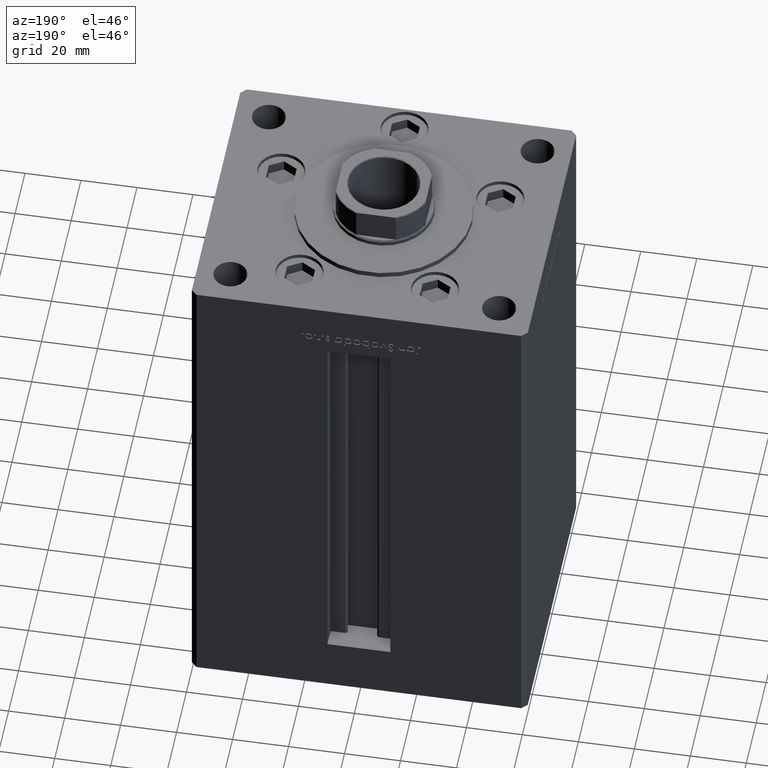
[diagram: clean part render]
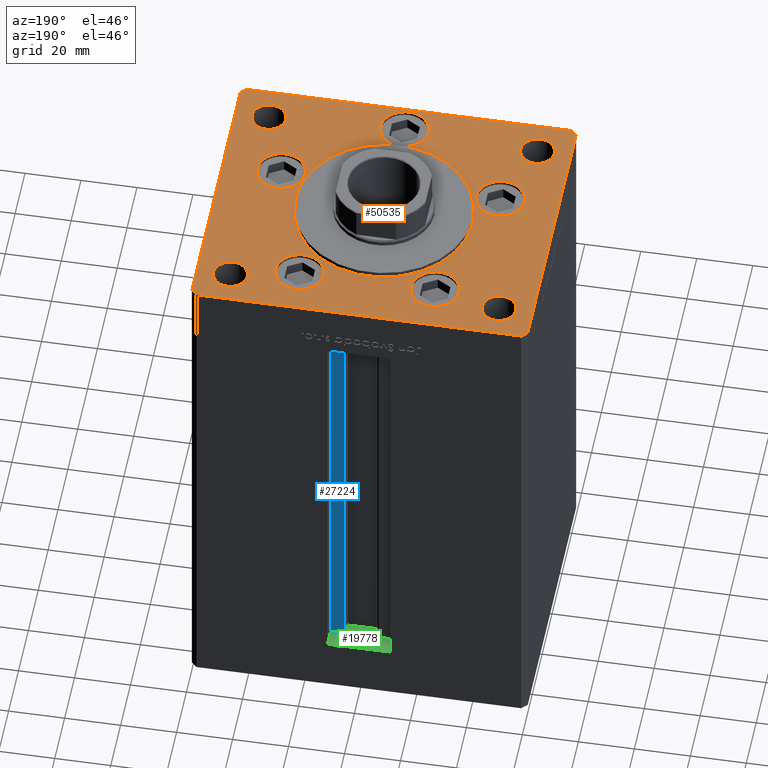
[diagram: same view with three faces highlighted in distinct colors, each labeled with its STEP entity id]
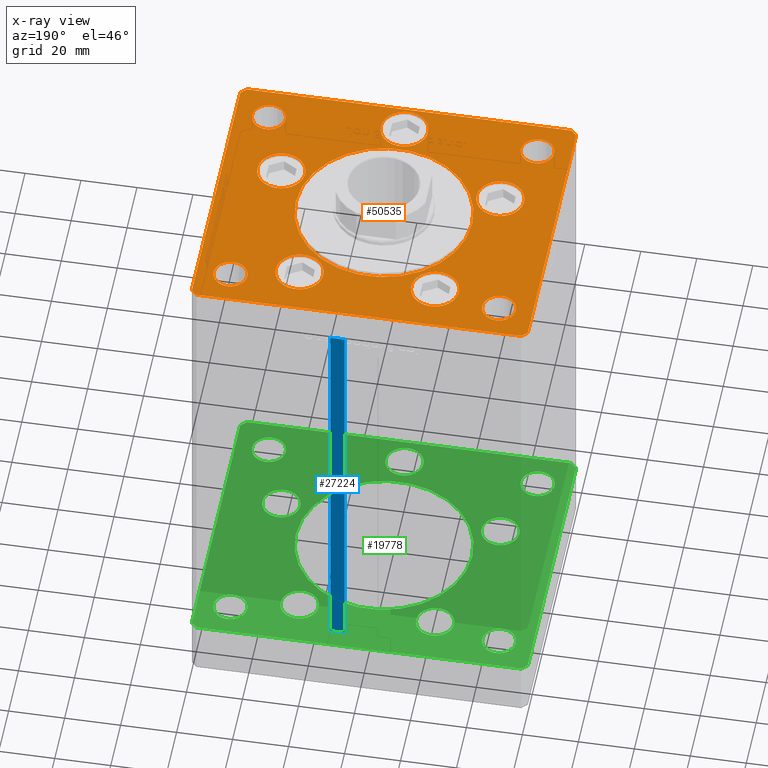
[diagram: x-ray of the same camera — body ghosted, the three highlighted faces saturated]
A machine part, auxiliary view with three faces highlighted in distinct colors.
The next image is the same camera in x-ray (body ghosted, the three faces saturated) — at least one of them is partly hidden behind the body in this view.
Their STEP definitions:

[orange] entity #50535 — the highlighted planar face has unit normal (0, 0, 1).
#185 = CARTESIAN_POINT ( 'NONE',  ( 31.50000000000000000, -3.081256486593065689E-15, 0.000000000000000000 ) ) ;
#262 = FACE_BOUND ( 'NONE', #1517, .T. ) ;
#434 = CIRCLE ( 'NONE', #8855, 31.50000000000000000 ) ;
#737 = CIRCLE ( 'NONE', #7461, 6.000000000000005329 ) ;
#880 = CARTESIAN_POINT ( 'NONE',  ( 48.00000000000000000, -39.00000000000001421, 0.000000000000000000 ) ) ;
#1144 = DIRECTION ( 'NONE',  ( 1.000000000000000000, 0.000000000000000000, 0.000000000000000000 ) ) ;
#1154 = CARTESIAN_POINT ( 'NONE',  ( 48.00000000000000000, 39.00000000000000000, 0.000000000000000000 ) ) ;
#1517 = EDGE_LOOP ( 'NONE', ( #33953, #35076 ) ) ;
#1633 = ORIENTED_EDGE ( 'NONE', *, *, #51772, .T. ) ;
#2151 = ORIENTED_EDGE ( 'NONE', *, *, #50298, .F. ) ;
#2463 = CARTESIAN_POINT ( 'NONE',  ( 0.000000000000000000, -6.938893903907228378E-15, 0.000000000000000000 ) ) ;
#2845 = CIRCLE ( 'NONE', #50816, 6.000000000000005329 ) ;
#2955 = CARTESIAN_POINT ( 'NONE',  ( 47.62657522565563539, -13.83333333333332860, 0.000000000000000000 ) ) ;
#3052 = VECTOR ( 'NONE', #6589, 1000.000000000000000 ) ;
#3515 = LINE ( 'NONE', #4296, #48664 ) ;
#3638 = CARTESIAN_POINT ( 'NONE',  ( 60.00000000000001421, 49.00000000000002842, 0.000000000000000000 ) ) ;
#3797 = CARTESIAN_POINT ( 'NONE',  ( -60.00000000000000000, 49.00000000000000000, 0.000000000000000000 ) ) ;
#3827 = CARTESIAN_POINT ( 'NONE',  ( 54.00000000000000711, -39.00000000000001421, 0.000000000000000000 ) ) ;
#3857 = CARTESIAN_POINT ( 'NONE',  ( -58.00000000000000711, -51.00000000000002842, 0.000000000000000000 ) ) ;
#3951 = DIRECTION ( 'NONE',  ( -0.000000000000000000, 0.000000000000000000, 1.000000000000000000 ) ) ;
#4238 = ORIENTED_EDGE ( 'NONE', *, *, #43048, .F. ) ;
#4296 = CARTESIAN_POINT ( 'NONE',  ( 58.00000000000000000, 51.00000000000000711, 0.000000000000000000 ) ) ;
#4360 = EDGE_CURVE ( 'NONE', #10547, #4986, #25773, .T. ) ;
#4701 = CARTESIAN_POINT ( 'NONE',  ( 39.12657522565563539, -13.83333333333332860, 0.000000000000000000 ) ) ;
#4986 = VERTEX_POINT ( 'NONE', #37569 ) ;
#5121 = VERTEX_POINT ( 'NONE', #13509 ) ;
#5194 = VERTEX_POINT ( 'NONE', #26675 ) ;
#5265 = CIRCLE ( 'NONE', #26284, 6.000000000000005329 ) ;
#5558 = AXIS2_PLACEMENT_3D ( 'NONE', #43941, #19971, #28398 ) ;
#5627 = DIRECTION ( 'NONE',  ( 0.000000000000000000, 0.000000000000000000, 1.000000000000000000 ) ) ;
#5755 = AXIS2_PLACEMENT_3D ( 'NONE', #15783, #3951, #16300 ) ;
#5776 = ORIENTED_EDGE ( 'NONE', *, *, #46290, .F. ) ;
#6110 = CARTESIAN_POINT ( 'NONE',  ( 58.00000000000001421, -50.99999999999992184, 0.000000000000000000 ) ) ;
#6589 = DIRECTION ( 'NONE',  ( 0.000000000000000000, 1.000000000000000000, 0.000000000000000000 ) ) ;
#6631 = CARTESIAN_POINT ( 'NONE',  ( -48.00000000000000000, 39.00000000000000711, 0.000000000000000000 ) ) ;
#7089 = CARTESIAN_POINT ( 'NONE',  ( -41.99999999999999289, -39.00000000000001421, 0.000000000000000000 ) ) ;
#7126 = CIRCLE ( 'NONE', #44128, 8.499999999999992895 ) ;
#7217 = EDGE_CURVE ( 'NONE', #16420, #5121, #15681, .T. ) ;
#7232 = CIRCLE ( 'NONE', #36691, 31.50000000000000000 ) ;
#7312 = EDGE_LOOP ( 'NONE', ( #47603, #5776 ) ) ;
#7461 = AXIS2_PLACEMENT_3D ( 'NONE', #28326, #44400, #36495 ) ;
#7678 = DIRECTION ( 'NONE',  ( 1.000000000000000000, 0.000000000000000000, 0.000000000000000000 ) ) ;
#7922 = EDGE_CURVE ( 'NONE', #19892, #48755, #19090, .T. ) ;
#8158 = EDGE_CURVE ( 'NONE', #40352, #13377, #42644, .T. ) ;
#8820 = AXIS2_PLACEMENT_3D ( 'NONE', #16201, #23869, #32555 ) ;
#8855 = AXIS2_PLACEMENT_3D ( 'NONE', #2463, #22723, #43009 ) ;
#9013 = CARTESIAN_POINT ( 'NONE',  ( 15.69288941894913769, 33.71874999999998579, 0.000000000000000000 ) ) ;
#9322 = CARTESIAN_POINT ( 'NONE',  ( -41.99999999999999289, 39.00000000000000711, 0.000000000000000000 ) ) ;
#9624 = EDGE_LOOP ( 'NONE', ( #2151, #43667 ) ) ;
#9683 = ORIENTED_EDGE ( 'NONE', *, *, #44700, .F. ) ;
#9729 = CARTESIAN_POINT ( 'NONE',  ( 60.00000000000001421, 49.00000000000002842, 0.000000000000000000 ) ) ;
#10237 = EDGE_CURVE ( 'NONE', #30057, #36715, #34348, .T. ) ;
#10272 = CARTESIAN_POINT ( 'NONE',  ( 54.00000000000000711, 39.00000000000000000, 0.000000000000000000 ) ) ;
#10309 = CARTESIAN_POINT ( 'NONE',  ( 30.62657522565563184, -13.83333333333332682, 0.000000000000000000 ) ) ;
#10520 = CARTESIAN_POINT ( 'NONE',  ( 58.00000000000000000, 51.00000000000000711, 0.000000000000000000 ) ) ;
#10547 = VERTEX_POINT ( 'NONE', #3827 ) ;
#10672 = AXIS2_PLACEMENT_3D ( 'NONE', #47862, #51836, #27579 ) ;
#10709 = DIRECTION ( 'NONE',  ( 0.000000000000000000, 0.000000000000000000, 1.000000000000000000 ) ) ;
#10840 = VERTEX_POINT ( 'NONE', #40635 ) ;
#11454 = EDGE_CURVE ( 'NONE', #29745, #27309, #3515, .T. ) ;
#11493 = CARTESIAN_POINT ( 'NONE',  ( -58.00000000000000711, -51.00000000000002842, 0.000000000000000000 ) ) ;
#12627 = PLANE ( 'NONE',  #5755 ) ;
#12785 = CARTESIAN_POINT ( 'NONE',  ( 8.500000000000000000, -41.50000000000000000, 0.000000000000000000 ) ) ;
#12974 = DIRECTION ( 'NONE',  ( -1.000000000000000000, 0.000000000000000000, 0.000000000000000000 ) ) ;
#13345 = ORIENTED_EDGE ( 'NONE', *, *, #32175, .T. ) ;
#13377 = VERTEX_POINT ( 'NONE', #9013 ) ;
#13404 = ORIENTED_EDGE ( 'NONE', *, *, #48327, .F. ) ;
#13509 = CARTESIAN_POINT ( 'NONE',  ( 41.99999999999999289, 39.00000000000000000, 0.000000000000000000 ) ) ;
#13801 = CARTESIAN_POINT ( 'NONE',  ( -39.12657522565563539, -13.83333333333332860, 0.000000000000000000 ) ) ;
#14270 = DIRECTION ( 'NONE',  ( -0.000000000000000000, -0.000000000000000000, -1.000000000000000000 ) ) ;
#14670 = CIRCLE ( 'NONE', #24766, 8.500000000000000000 ) ;
#14858 = VERTEX_POINT ( 'NONE', #3638 ) ;
#14899 = CARTESIAN_POINT ( 'NONE',  ( -30.62657522565563539, -13.83333333333332860, 0.000000000000000000 ) ) ;
#14961 = CIRCLE ( 'NONE', #41046, 8.500000000000000000 ) ;
#15010 = VERTEX_POINT ( 'NONE', #50522 ) ;
#15045 = CARTESIAN_POINT ( 'NONE',  ( 48.00000000000000000, -39.00000000000001421, 0.000000000000000000 ) ) ;
#15582 = CARTESIAN_POINT ( 'NONE',  ( 48.00000000000000000, 39.00000000000000000, 0.000000000000000000 ) ) ;
#15653 = DIRECTION ( 'NONE',  ( 0.000000000000000000, 0.000000000000000000, 1.000000000000000000 ) ) ;
#15681 = CIRCLE ( 'NONE', #33398, 6.000000000000005329 ) ;
#15758 = FACE_BOUND ( 'NONE', #7312, .T. ) ;
#15783 = CARTESIAN_POINT ( 'NONE',  ( 0.000000000000000000, 0.000000000000000000, 0.000000000000000000 ) ) ;
#15978 = CARTESIAN_POINT ( 'NONE',  ( -8.500000000000000000, -41.50000000000000000, 0.000000000000000000 ) ) ;
#16201 = CARTESIAN_POINT ( 'NONE',  ( -48.00000000000000000, -39.00000000000001421, 0.000000000000000000 ) ) ;
#16300 = DIRECTION ( 'NONE',  ( 1.000000000000000000, 0.000000000000000000, 0.000000000000000000 ) ) ;
#16373 = CARTESIAN_POINT ( 'NONE',  ( 39.12657522565563539, -13.83333333333332860, 0.000000000000000000 ) ) ;
#16420 = VERTEX_POINT ( 'NONE', #10272 ) ;
#16795 = DIRECTION ( 'NONE',  ( 1.000000000000000000, 0.000000000000000000, 0.000000000000000000 ) ) ;
#16930 = CARTESIAN_POINT ( 'NONE',  ( -54.00000000000000711, 39.00000000000000711, 0.000000000000000000 ) ) ;
#17629 = CARTESIAN_POINT ( 'NONE',  ( -15.69288941894913414, 33.71874999999998579, 0.000000000000000000 ) ) ;
#17966 = EDGE_CURVE ( 'NONE', #39639, #14858, #23675, .T. ) ;
#18190 = DIRECTION ( 'NONE',  ( 1.000000000000000000, 0.000000000000000000, 0.000000000000000000 ) ) ;
#19004 = DIRECTION ( 'NONE',  ( -1.000000000000000000, 0.000000000000000000, 0.000000000000000000 ) ) ;
#19084 = EDGE_LOOP ( 'NONE', ( #38382, #26314 ) ) ;
#19090 = CIRCLE ( 'NONE', #29179, 8.500000000000000000 ) ;
#19369 = EDGE_LOOP ( 'NONE', ( #37688, #13404 ) ) ;
#19549 = ORIENTED_EDGE ( 'NONE', *, *, #41529, .F. ) ;
#19718 = VECTOR ( 'NONE', #21081, 1000.000000000000114 ) ;
#19892 = VERTEX_POINT ( 'NONE', #17629 ) ;
#19971 = DIRECTION ( 'NONE',  ( 0.000000000000000000, 0.000000000000000000, 1.000000000000000000 ) ) ;
#20403 = EDGE_CURVE ( 'NONE', #10840, #39639, #27157, .T. ) ;
#20439 = EDGE_CURVE ( 'NONE', #23991, #41467, #42154, .T. ) ;
#20629 = CIRCLE ( 'NONE', #8820, 6.000000000000005329 ) ;
#20708 = ORIENTED_EDGE ( 'NONE', *, *, #11454, .T. ) ;
#20760 = DIRECTION ( 'NONE',  ( 0.000000000000000000, 0.000000000000000000, 1.000000000000000000 ) ) ;
#20892 = DIRECTION ( 'NONE',  ( 0.000000000000000000, 0.000000000000000000, 1.000000000000000000 ) ) ;
#21081 = DIRECTION ( 'NONE',  ( 0.7071067811865474617, -0.7071067811865474617, 0.000000000000000000 ) ) ;
#21407 = VERTEX_POINT ( 'NONE', #2955 ) ;
#21585 = VECTOR ( 'NONE', #39427, 1000.000000000000000 ) ;
#21839 = LINE ( 'NONE', #9729, #33663 ) ;
#22413 = DIRECTION ( 'NONE',  ( 0.000000000000000000, 0.000000000000000000, 1.000000000000000000 ) ) ;
#22437 = DIRECTION ( 'NONE',  ( -0.000000000000000000, -0.000000000000000000, -1.000000000000000000 ) ) ;
#22615 = EDGE_CURVE ( 'NONE', #14858, #29745, #21839, .T. ) ;
#22723 = DIRECTION ( 'NONE',  ( 0.000000000000000000, 0.000000000000000000, 1.000000000000000000 ) ) ;
#22907 = CARTESIAN_POINT ( 'NONE',  ( -24.19288941894913592, 33.71874999999998579, 0.000000000000000000 ) ) ;
#23343 = CARTESIAN_POINT ( 'NONE',  ( -60.00000000000000000, 49.00000000000000000, 0.000000000000000000 ) ) ;
#23348 = ORIENTED_EDGE ( 'NONE', *, *, #20439, .T. ) ;
#23446 = FACE_BOUND ( 'NONE', #43613, .T. ) ;
#23521 = AXIS2_PLACEMENT_3D ( 'NONE', #6631, #22437, #31113 ) ;
#23576 = CARTESIAN_POINT ( 'NONE',  ( 0.000000000000000000, -41.50000000000000000, 0.000000000000000000 ) ) ;
#23675 = LINE ( 'NONE', #31847, #3052 ) ;
#23869 = DIRECTION ( 'NONE',  ( 0.000000000000000000, 0.000000000000000000, 1.000000000000000000 ) ) ;
#23991 = VERTEX_POINT ( 'NONE', #16930 ) ;
#24002 = CARTESIAN_POINT ( 'NONE',  ( 0.000000000000000000, -41.50000000000000000, 0.000000000000000000 ) ) ;
#24083 = AXIS2_PLACEMENT_3D ( 'NONE', #49356, #20892, #1144 ) ;
#24400 = LINE ( 'NONE', #3857, #34073 ) ;
#24541 = CARTESIAN_POINT ( 'NONE',  ( -24.19288941894913592, 33.71874999999998579, 0.000000000000000000 ) ) ;
#24766 = AXIS2_PLACEMENT_3D ( 'NONE', #4701, #20760, #16795 ) ;
#25000 = ORIENTED_EDGE ( 'NONE', *, *, #17966, .T. ) ;
#25757 = CIRCLE ( 'NONE', #5558, 8.500000000000000000 ) ;
#25773 = CIRCLE ( 'NONE', #45963, 6.000000000000005329 ) ;
#26238 = EDGE_LOOP ( 'NONE', ( #28160, #44499 ) ) ;
#26284 = AXIS2_PLACEMENT_3D ( 'NONE', #15582, #31668, #47746 ) ;
#26314 = ORIENTED_EDGE ( 'NONE', *, *, #34754, .F. ) ;
#26362 = ORIENTED_EDGE ( 'NONE', *, *, #22615, .T. ) ;
#26675 = CARTESIAN_POINT ( 'NONE',  ( -54.00000000000000711, -39.00000000000001421, 0.000000000000000000 ) ) ;
#26786 = DIRECTION ( 'NONE',  ( 1.000000000000000000, 0.000000000000000000, 0.000000000000000000 ) ) ;
#27157 = LINE ( 'NONE', #6110, #42042 ) ;
#27167 = CIRCLE ( 'NONE', #38987, 8.500000000000000000 ) ;
#27202 = CARTESIAN_POINT ( 'NONE',  ( -31.50000000000000000, -6.938893903907228378E-15, 0.000000000000000000 ) ) ;
#27309 = VERTEX_POINT ( 'NONE', #35759 ) ;
#27579 = DIRECTION ( 'NONE',  ( 1.000000000000000000, 0.000000000000000000, 0.000000000000000000 ) ) ;
#27645 = DIRECTION ( 'NONE',  ( 0.000000000000000000, 0.000000000000000000, 1.000000000000000000 ) ) ;
#27901 = DIRECTION ( 'NONE',  ( 1.000000000000000000, 0.000000000000000000, 0.000000000000000000 ) ) ;
#27988 = DIRECTION ( 'NONE',  ( 0.000000000000000000, 0.000000000000000000, 1.000000000000000000 ) ) ;
#28043 = EDGE_CURVE ( 'NONE', #5121, #16420, #5265, .T. ) ;
#28156 = FACE_BOUND ( 'NONE', #19084, .T. ) ;
#28160 = ORIENTED_EDGE ( 'NONE', *, *, #7217, .F. ) ;
#28184 = FACE_OUTER_BOUND ( 'NONE', #49896, .T. ) ;
#28326 = CARTESIAN_POINT ( 'NONE',  ( -48.00000000000000000, 39.00000000000000711, 0.000000000000000000 ) ) ;
#28398 = DIRECTION ( 'NONE',  ( 1.000000000000000000, 0.000000000000000000, 0.000000000000000000 ) ) ;
#28962 = ORIENTED_EDGE ( 'NONE', *, *, #35226, .T. ) ;
#28986 = ORIENTED_EDGE ( 'NONE', *, *, #4360, .T. ) ;
#29175 = DIRECTION ( 'NONE',  ( -0.7071067811865536790, -0.7071067811865414665, 0.000000000000000000 ) ) ;
#29179 = AXIS2_PLACEMENT_3D ( 'NONE', #22907, #27645, #27901 ) ;
#29313 = VECTOR ( 'NONE', #29175, 1000.000000000000000 ) ;
#29582 = DIRECTION ( 'NONE',  ( -0.000000000000000000, -0.000000000000000000, -1.000000000000000000 ) ) ;
#29745 = VERTEX_POINT ( 'NONE', #10520 ) ;
#30057 = VERTEX_POINT ( 'NONE', #14899 ) ;
#30240 = LINE ( 'NONE', #23343, #21585 ) ;
#30341 = DIRECTION ( 'NONE',  ( 0.7071067811865474617, 0.7071067811865474617, 0.000000000000000000 ) ) ;
#30367 = DIRECTION ( 'NONE',  ( 1.000000000000000000, 0.000000000000000000, 0.000000000000000000 ) ) ;
#30368 = DIRECTION ( 'NONE',  ( 1.000000000000000000, 0.000000000000000000, 0.000000000000000000 ) ) ;
#30609 = VERTEX_POINT ( 'NONE', #7089 ) ;
#30627 = CARTESIAN_POINT ( 'NONE',  ( 0.000000000000000000, -6.938893903907228378E-15, 0.000000000000000000 ) ) ;
#31113 = DIRECTION ( 'NONE',  ( -1.000000000000000000, 0.000000000000000000, 0.000000000000000000 ) ) ;
#31511 = EDGE_CURVE ( 'NONE', #43478, #46007, #27167, .T. ) ;
#31667 = AXIS2_PLACEMENT_3D ( 'NONE', #23576, #15653, #39399 ) ;
#31668 = DIRECTION ( 'NONE',  ( 0.000000000000000000, 0.000000000000000000, 1.000000000000000000 ) ) ;
#31847 = CARTESIAN_POINT ( 'NONE',  ( 60.00000000000001421, -48.99999999999992895, 0.000000000000000000 ) ) ;
#31999 = EDGE_LOOP ( 'NONE', ( #28986, #13345 ) ) ;
#32175 = EDGE_CURVE ( 'NONE', #4986, #10547, #2845, .T. ) ;
#32555 = DIRECTION ( 'NONE',  ( 1.000000000000000000, 0.000000000000000000, 0.000000000000000000 ) ) ;
#32610 = AXIS2_PLACEMENT_3D ( 'NONE', #24541, #22413, #18190 ) ;
#33398 = AXIS2_PLACEMENT_3D ( 'NONE', #1154, #5627, #30367 ) ;
#33518 = ORIENTED_EDGE ( 'NONE', *, *, #44238, .T. ) ;
#33657 = CARTESIAN_POINT ( 'NONE',  ( -57.99999999999998579, 50.99999999999997868, 0.000000000000000000 ) ) ;
#33663 = VECTOR ( 'NONE', #42626, 1000.000000000000000 ) ;
#33707 = CARTESIAN_POINT ( 'NONE',  ( 60.00000000000001421, -48.99999999999992895, 0.000000000000000000 ) ) ;
#33953 = ORIENTED_EDGE ( 'NONE', *, *, #36575, .F. ) ;
#34073 = VECTOR ( 'NONE', #51559, 1000.000000000000000 ) ;
#34348 = CIRCLE ( 'NONE', #45239, 8.500000000000000000 ) ;
#34754 = EDGE_CURVE ( 'NONE', #13377, #40352, #7126, .T. ) ;
#34800 = ORIENTED_EDGE ( 'NONE', *, *, #10237, .F. ) ;
#35076 = ORIENTED_EDGE ( 'NONE', *, *, #43842, .F. ) ;
#35226 = EDGE_CURVE ( 'NONE', #15010, #36608, #41364, .T. ) ;
#35429 = EDGE_CURVE ( 'NONE', #45628, #21407, #14670, .T. ) ;
#35759 = CARTESIAN_POINT ( 'NONE',  ( -57.99999999999998579, 50.99999999999997868, 0.000000000000000000 ) ) ;
#35810 = FACE_BOUND ( 'NONE', #49663, .T. ) ;
#35995 = CARTESIAN_POINT ( 'NONE',  ( 32.69288941894912881, 33.71874999999998579, 0.000000000000000000 ) ) ;
#36100 = FACE_BOUND ( 'NONE', #26238, .T. ) ;
#36495 = DIRECTION ( 'NONE',  ( -1.000000000000000000, 0.000000000000000000, 0.000000000000000000 ) ) ;
#36575 = EDGE_CURVE ( 'NONE', #30609, #5194, #20629, .T. ) ;
#36584 = EDGE_CURVE ( 'NONE', #36608, #10840, #24400, .T. ) ;
#36608 = VERTEX_POINT ( 'NONE', #11493 ) ;
#36691 = AXIS2_PLACEMENT_3D ( 'NONE', #30627, #50417, #30368 ) ;
#36715 = VERTEX_POINT ( 'NONE', #39113 ) ;
#37569 = CARTESIAN_POINT ( 'NONE',  ( 41.99999999999999289, -39.00000000000001421, 0.000000000000000000 ) ) ;
#37683 = CIRCLE ( 'NONE', #32610, 8.500000000000000000 ) ;
#37688 = ORIENTED_EDGE ( 'NONE', *, *, #7922, .F. ) ;
#38057 = DIRECTION ( 'NONE',  ( 1.000000000000000000, 0.000000000000000000, 0.000000000000000000 ) ) ;
#38382 = ORIENTED_EDGE ( 'NONE', *, *, #8158, .F. ) ;
#38987 = AXIS2_PLACEMENT_3D ( 'NONE', #24002, #43770, #7678 ) ;
#39074 = VERTEX_POINT ( 'NONE', #27202 ) ;
#39113 = CARTESIAN_POINT ( 'NONE',  ( -47.62657522565563539, -13.83333333333332682, 0.000000000000000000 ) ) ;
#39278 = CIRCLE ( 'NONE', #31667, 8.500000000000000000 ) ;
#39399 = DIRECTION ( 'NONE',  ( 1.000000000000000000, 0.000000000000000000, 0.000000000000000000 ) ) ;
#39427 = DIRECTION ( 'NONE',  ( 0.000000000000000000, -1.000000000000000000, 0.000000000000000000 ) ) ;
#39520 = FACE_BOUND ( 'NONE', #31999, .T. ) ;
#39639 = VERTEX_POINT ( 'NONE', #33707 ) ;
#39789 = VERTEX_POINT ( 'NONE', #185 ) ;
#39954 = VERTEX_POINT ( 'NONE', #3797 ) ;
#40352 = VERTEX_POINT ( 'NONE', #35995 ) ;
#40540 = FACE_BOUND ( 'NONE', #9624, .T. ) ;
#40635 = CARTESIAN_POINT ( 'NONE',  ( 58.00000000000001421, -50.99999999999992184, 0.000000000000000000 ) ) ;
#40804 = FACE_BOUND ( 'NONE', #19369, .T. ) ;
#41046 = AXIS2_PLACEMENT_3D ( 'NONE', #16373, #27988, #44322 ) ;
#41312 = ORIENTED_EDGE ( 'NONE', *, *, #52106, .T. ) ;
#41364 = LINE ( 'NONE', #49558, #19718 ) ;
#41467 = VERTEX_POINT ( 'NONE', #9322 ) ;
#41529 = EDGE_CURVE ( 'NONE', #39789, #39074, #434, .T. ) ;
#41814 = LINE ( 'NONE', #33657, #29313 ) ;
#41860 = ORIENTED_EDGE ( 'NONE', *, *, #36584, .T. ) ;
#42042 = VECTOR ( 'NONE', #30341, 1000.000000000000114 ) ;
#42154 = CIRCLE ( 'NONE', #23521, 6.000000000000005329 ) ;
#42591 = CIRCLE ( 'NONE', #24083, 6.000000000000005329 ) ;
#42626 = DIRECTION ( 'NONE',  ( -0.7071067811865536790, 0.7071067811865414665, 0.000000000000000000 ) ) ;
#42644 = CIRCLE ( 'NONE', #10672, 8.499999999999992895 ) ;
#43009 = DIRECTION ( 'NONE',  ( 1.000000000000000000, 0.000000000000000000, 0.000000000000000000 ) ) ;
#43048 = EDGE_CURVE ( 'NONE', #36715, #30057, #25757, .T. ) ;
#43478 = VERTEX_POINT ( 'NONE', #12785 ) ;
#43613 = EDGE_LOOP ( 'NONE', ( #41312, #23348 ) ) ;
#43667 = ORIENTED_EDGE ( 'NONE', *, *, #35429, .F. ) ;
#43770 = DIRECTION ( 'NONE',  ( 0.000000000000000000, 0.000000000000000000, 1.000000000000000000 ) ) ;
#43842 = EDGE_CURVE ( 'NONE', #5194, #30609, #42591, .T. ) ;
#43941 = CARTESIAN_POINT ( 'NONE',  ( -39.12657522565563539, -13.83333333333332860, 0.000000000000000000 ) ) ;
#44128 = AXIS2_PLACEMENT_3D ( 'NONE', #46807, #10709, #26786 ) ;
#44238 = EDGE_CURVE ( 'NONE', #39954, #15010, #30240, .T. ) ;
#44322 = DIRECTION ( 'NONE',  ( 1.000000000000000000, 0.000000000000000000, 0.000000000000000000 ) ) ;
#44400 = DIRECTION ( 'NONE',  ( -0.000000000000000000, -0.000000000000000000, -1.000000000000000000 ) ) ;
#44499 = ORIENTED_EDGE ( 'NONE', *, *, #28043, .F. ) ;
#44600 = DIRECTION ( 'NONE',  ( -1.000000000000000000, -2.392722035830078972E-16, 0.000000000000000000 ) ) ;
#44700 = EDGE_CURVE ( 'NONE', #39074, #39789, #7232, .T. ) ;
#45239 = AXIS2_PLACEMENT_3D ( 'NONE', #13801, #50186, #38057 ) ;
#45628 = VERTEX_POINT ( 'NONE', #10309 ) ;
#45963 = AXIS2_PLACEMENT_3D ( 'NONE', #15045, #14270, #19004 ) ;
#46007 = VERTEX_POINT ( 'NONE', #15978 ) ;
#46290 = EDGE_CURVE ( 'NONE', #46007, #43478, #39278, .T. ) ;
#46785 = EDGE_LOOP ( 'NONE', ( #34800, #4238 ) ) ;
#46807 = CARTESIAN_POINT ( 'NONE',  ( 24.19288941894913592, 33.71874999999998579, 0.000000000000000000 ) ) ;
#47603 = ORIENTED_EDGE ( 'NONE', *, *, #31511, .F. ) ;
#47746 = DIRECTION ( 'NONE',  ( 1.000000000000000000, 0.000000000000000000, 0.000000000000000000 ) ) ;
#47862 = CARTESIAN_POINT ( 'NONE',  ( 24.19288941894913592, 33.71874999999998579, 0.000000000000000000 ) ) ;
#48327 = EDGE_CURVE ( 'NONE', #48755, #19892, #37683, .T. ) ;
#48664 = VECTOR ( 'NONE', #44600, 1000.000000000000000 ) ;
#48755 = VERTEX_POINT ( 'NONE', #49522 ) ;
#49356 = CARTESIAN_POINT ( 'NONE',  ( -48.00000000000000000, -39.00000000000001421, 0.000000000000000000 ) ) ;
#49522 = CARTESIAN_POINT ( 'NONE',  ( -32.69288941894913592, 33.71874999999998579, 0.000000000000000000 ) ) ;
#49558 = CARTESIAN_POINT ( 'NONE',  ( -60.00000000000000000, -49.00000000000004263, 0.000000000000000000 ) ) ;
#49663 = EDGE_LOOP ( 'NONE', ( #9683, #19549 ) ) ;
#49896 = EDGE_LOOP ( 'NONE', ( #28962, #41860, #50511, #25000, #26362, #20708, #1633, #33518 ) ) ;
#50186 = DIRECTION ( 'NONE',  ( 0.000000000000000000, 0.000000000000000000, 1.000000000000000000 ) ) ;
#50298 = EDGE_CURVE ( 'NONE', #21407, #45628, #14961, .T. ) ;
#50417 = DIRECTION ( 'NONE',  ( 0.000000000000000000, 0.000000000000000000, 1.000000000000000000 ) ) ;
#50511 = ORIENTED_EDGE ( 'NONE', *, *, #20403, .T. ) ;
#50522 = CARTESIAN_POINT ( 'NONE',  ( -60.00000000000000000, -49.00000000000004263, 0.000000000000000000 ) ) ;
#50535 = ADVANCED_FACE ( 'NONE', ( #35810, #40804, #28156, #40540, #15758, #51919, #23446, #36100, #262, #28184, #39520 ), #12627, .T. ) ;
#50816 = AXIS2_PLACEMENT_3D ( 'NONE', #880, #29582, #12974 ) ;
#51559 = DIRECTION ( 'NONE',  ( 1.000000000000000000, 9.570888143320313916E-16, 0.000000000000000000 ) ) ;
#51772 = EDGE_CURVE ( 'NONE', #27309, #39954, #41814, .T. ) ;
#51836 = DIRECTION ( 'NONE',  ( 0.000000000000000000, 0.000000000000000000, 1.000000000000000000 ) ) ;
#51919 = FACE_BOUND ( 'NONE', #46785, .T. ) ;
#52106 = EDGE_CURVE ( 'NONE', #41467, #23991, #737, .T. ) ;

[blue] entity #27224 — the highlighted planar face has unit normal (0, -1, 0).
#1475 = LINE ( 'NONE', #5158, #10588 ) ;
#4786 = CARTESIAN_POINT ( 'NONE',  ( 11.25000000000000178, 44.50000000000000000, 148.5000000000000000 ) ) ;
#5158 = CARTESIAN_POINT ( 'NONE',  ( 6.183333333334001480, 44.50000000000000000, 0.000000000000000000 ) ) ;
#5833 = ORIENTED_EDGE ( 'NONE', *, *, #7865, .F. ) ;
#5924 = CARTESIAN_POINT ( 'NONE',  ( 6.183333333334001480, 44.50000000000000000, 0.000000000000000000 ) ) ;
#7865 = EDGE_CURVE ( 'NONE', #12063, #47620, #42005, .T. ) ;
#9796 = CARTESIAN_POINT ( 'NONE',  ( 6.183333333334001480, 44.50000000000000000, 148.5000000000000000 ) ) ;
#10588 = VECTOR ( 'NONE', #37034, 1000.000000000000000 ) ;
#12063 = VERTEX_POINT ( 'NONE', #51096 ) ;
#12629 = LINE ( 'NONE', #29234, #31835 ) ;
#13465 = DIRECTION ( 'NONE',  ( 0.000000000000000000, -0.000000000000000000, -1.000000000000000000 ) ) ;
#13504 = EDGE_CURVE ( 'NONE', #47620, #41750, #12629, .T. ) ;
#13726 = PLANE ( 'NONE',  #28755 ) ;
#17419 = DIRECTION ( 'NONE',  ( 0.000000000000000000, -1.000000000000000000, 0.000000000000000000 ) ) ;
#21053 = ORIENTED_EDGE ( 'NONE', *, *, #43407, .T. ) ;
#21378 = CARTESIAN_POINT ( 'NONE',  ( 6.183333333334001480, 44.50000000000000000, 0.000000000000000000 ) ) ;
#21630 = VECTOR ( 'NONE', #49142, 1000.000000000000000 ) ;
#22661 = ORIENTED_EDGE ( 'NONE', *, *, #47214, .F. ) ;
#23118 = ORIENTED_EDGE ( 'NONE', *, *, #13504, .F. ) ;
#25022 = DIRECTION ( 'NONE',  ( -0.000000000000000000, -0.000000000000000000, 1.000000000000000000 ) ) ;
#27224 = ADVANCED_FACE ( 'NONE', ( #45617 ), #13726, .F. ) ;
#27286 = VERTEX_POINT ( 'NONE', #9796 ) ;
#28585 = DIRECTION ( 'NONE',  ( -1.000000000000000000, 0.000000000000000000, 0.000000000000000000 ) ) ;
#28755 = AXIS2_PLACEMENT_3D ( 'NONE', #21378, #17419, #13465 ) ;
#29234 = CARTESIAN_POINT ( 'NONE',  ( 11.25000000000000178, 44.50000000000000000, 0.000000000000000000 ) ) ;
#30073 = VECTOR ( 'NONE', #28585, 1000.000000000000000 ) ;
#31835 = VECTOR ( 'NONE', #25022, 1000.000000000000000 ) ;
#37034 = DIRECTION ( 'NONE',  ( -0.000000000000000000, -0.000000000000000000, 1.000000000000000000 ) ) ;
#40051 = CARTESIAN_POINT ( 'NONE',  ( 11.25000000000000178, 44.50000000000000000, 0.000000000000000000 ) ) ;
#41750 = VERTEX_POINT ( 'NONE', #4786 ) ;
#42005 = LINE ( 'NONE', #5924, #21630 ) ;
#43407 = EDGE_CURVE ( 'NONE', #12063, #27286, #1475, .T. ) ;
#45176 = CARTESIAN_POINT ( 'NONE',  ( 0.000000000000000000, 44.50000000000000000, 148.5000000000000000 ) ) ;
#45617 = FACE_OUTER_BOUND ( 'NONE', #48252, .T. ) ;
#47214 = EDGE_CURVE ( 'NONE', #41750, #27286, #49139, .T. ) ;
#47620 = VERTEX_POINT ( 'NONE', #40051 ) ;
#48252 = EDGE_LOOP ( 'NONE', ( #23118, #5833, #21053, #22661 ) ) ;
#49139 = LINE ( 'NONE', #45176, #30073 ) ;
#49142 = DIRECTION ( 'NONE',  ( 1.000000000000000000, 0.000000000000000000, 0.000000000000000000 ) ) ;
#51096 = CARTESIAN_POINT ( 'NONE',  ( 6.183333333334001480, 44.50000000000000000, 0.000000000000000000 ) ) ;

[green] entity #19778 — the highlighted planar face has unit normal (0, 0, -1).
#203 = CARTESIAN_POINT ( 'NONE',  ( 54.00000000000000711, -38.99999999999999289, -20.00000000000000000 ) ) ;
#637 = VERTEX_POINT ( 'NONE', #4052 ) ;
#857 = DIRECTION ( 'NONE',  ( 0.000000000000000000, 0.000000000000000000, 1.000000000000000000 ) ) ;
#1244 = CIRCLE ( 'NONE', #12980, 6.749999999999999112 ) ;
#1389 = CIRCLE ( 'NONE', #48492, 6.000000000000005329 ) ;
#1423 = DIRECTION ( 'NONE',  ( 0.000000000000000000, 0.000000000000000000, 1.000000000000000000 ) ) ;
#1750 = DIRECTION ( 'NONE',  ( 1.000000000000000000, 0.000000000000000000, 0.000000000000000000 ) ) ;
#2209 = EDGE_CURVE ( 'NONE', #28179, #4827, #6323, .T. ) ;
#2657 = CARTESIAN_POINT ( 'NONE',  ( 5.082284216461515748E-15, -41.50000000000000000, -20.00000000000000000 ) ) ;
#2730 = CARTESIAN_POINT ( 'NONE',  ( 31.50000000000000000, 0.000000000000000000, -20.00000000000000000 ) ) ;
#3185 = FACE_BOUND ( 'NONE', #48346, .T. ) ;
#3266 = CARTESIAN_POINT ( 'NONE',  ( -31.50000000000000000, 3.857637417314161900E-15, -20.00000000000000000 ) ) ;
#3278 = CARTESIAN_POINT ( 'NONE',  ( -45.87657522565562829, -13.83333333333333925, -20.00000000000000000 ) ) ;
#3487 = AXIS2_PLACEMENT_3D ( 'NONE', #34724, #19411, #43390 ) ;
#3504 = DIRECTION ( 'NONE',  ( -0.000000000000000000, -0.000000000000000000, -1.000000000000000000 ) ) ;
#3683 = ORIENTED_EDGE ( 'NONE', *, *, #39411, .F. ) ;
#3698 = CIRCLE ( 'NONE', #21382, 6.000000000000005329 ) ;
#3944 = ORIENTED_EDGE ( 'NONE', *, *, #50999, .F. ) ;
#3955 = FACE_BOUND ( 'NONE', #20405, .T. ) ;
#4052 = CARTESIAN_POINT ( 'NONE',  ( -41.99999999999999289, 39.00000000000000000, -20.00000000000000000 ) ) ;
#4222 = FACE_OUTER_BOUND ( 'NONE', #20380, .T. ) ;
#4620 = EDGE_LOOP ( 'NONE', ( #26767, #48117 ) ) ;
#4827 = VERTEX_POINT ( 'NONE', #27628 ) ;
#4916 = AXIS2_PLACEMENT_3D ( 'NONE', #43414, #44913, #43923 ) ;
#4924 = DIRECTION ( 'NONE',  ( 0.000000000000000000, -0.000000000000000000, -1.000000000000000000 ) ) ;
#4981 = VERTEX_POINT ( 'NONE', #13574 ) ;
#4993 = ORIENTED_EDGE ( 'NONE', *, *, #38199, .F. ) ;
#5095 = VERTEX_POINT ( 'NONE', #18239 ) ;
#5185 = ORIENTED_EDGE ( 'NONE', *, *, #34192, .F. ) ;
#5452 = AXIS2_PLACEMENT_3D ( 'NONE', #2657, #30842, #46917 ) ;
#5572 = VERTEX_POINT ( 'NONE', #50591 ) ;
#5703 = DIRECTION ( 'NONE',  ( 0.000000000000000000, -0.000000000000000000, -1.000000000000000000 ) ) ;
#5772 = AXIS2_PLACEMENT_3D ( 'NONE', #37219, #9297, #25364 ) ;
#5793 = VERTEX_POINT ( 'NONE', #24449 ) ;
#6127 = DIRECTION ( 'NONE',  ( -0.7071067811865487940, 0.7071067811865463515, 0.000000000000000000 ) ) ;
#6230 = VERTEX_POINT ( 'NONE', #14085 ) ;
#6323 = CIRCLE ( 'NONE', #19767, 6.000000000000005329 ) ;
#6646 = DIRECTION ( 'NONE',  ( -1.000000000000000000, -2.392722035830079958E-16, 0.000000000000000000 ) ) ;
#6721 = CARTESIAN_POINT ( 'NONE',  ( -32.37657522565562829, -13.83333333333333925, -20.00000000000000000 ) ) ;
#6895 = CARTESIAN_POINT ( 'NONE',  ( 48.00000000000000000, 38.99999999999999289, -20.00000000000000000 ) ) ;
#7023 = DIRECTION ( 'NONE',  ( -0.7071067811865451302, -0.7071067811865500152, 0.000000000000000000 ) ) ;
#7137 = DIRECTION ( 'NONE',  ( 0.000000000000000000, -0.000000000000000000, -1.000000000000000000 ) ) ;
#7152 = DIRECTION ( 'NONE',  ( 1.000000000000000000, 0.000000000000000000, 0.000000000000000000 ) ) ;
#7266 = CIRCLE ( 'NONE', #23279, 31.50000000000000000 ) ;
#7307 = CARTESIAN_POINT ( 'NONE',  ( -60.00000000000000000, -49.00000000000000000, -20.00000000000000000 ) ) ;
#7386 = CIRCLE ( 'NONE', #51970, 6.749999999999999112 ) ;
#7454 = DIRECTION ( 'NONE',  ( 0.000000000000000000, -0.000000000000000000, -1.000000000000000000 ) ) ;
#7546 = CIRCLE ( 'NONE', #48776, 6.749999999999999112 ) ;
#7646 = FACE_BOUND ( 'NONE', #44123, .T. ) ;
#7670 = EDGE_CURVE ( 'NONE', #51710, #15697, #12356, .T. ) ;
#7893 = DIRECTION ( 'NONE',  ( 0.000000000000000000, -0.000000000000000000, -1.000000000000000000 ) ) ;
#8145 = VERTEX_POINT ( 'NONE', #11247 ) ;
#8152 = AXIS2_PLACEMENT_3D ( 'NONE', #36794, #4924, #13067 ) ;
#8257 = EDGE_CURVE ( 'NONE', #12465, #10692, #30870, .T. ) ;
#8528 = CIRCLE ( 'NONE', #3487, 6.749999999999999112 ) ;
#8740 = AXIS2_PLACEMENT_3D ( 'NONE', #42692, #22660, #43203 ) ;
#8758 = VERTEX_POINT ( 'NONE', #19483 ) ;
#8873 = ORIENTED_EDGE ( 'NONE', *, *, #39231, .F. ) ;
#9297 = DIRECTION ( 'NONE',  ( 0.000000000000000000, 0.000000000000000000, 1.000000000000000000 ) ) ;
#9709 = AXIS2_PLACEMENT_3D ( 'NONE', #48583, #1423, #17471 ) ;
#9799 = CARTESIAN_POINT ( 'NONE',  ( 32.37657522565562829, -13.83333333333332860, -20.00000000000000000 ) ) ;
#10476 = DIRECTION ( 'NONE',  ( -0.000000000000000000, -0.000000000000000000, -1.000000000000000000 ) ) ;
#10692 = VERTEX_POINT ( 'NONE', #2730 ) ;
#10885 = DIRECTION ( 'NONE',  ( 1.000000000000000000, 0.000000000000000000, 0.000000000000000000 ) ) ;
#11053 = DIRECTION ( 'NONE',  ( -0.000000000000000000, -0.000000000000000000, -1.000000000000000000 ) ) ;
#11087 = CARTESIAN_POINT ( 'NONE',  ( 24.19288941894911460, 33.71875000000000711, -20.00000000000000000 ) ) ;
#11247 = CARTESIAN_POINT ( 'NONE',  ( 41.99999999999999289, 38.99999999999999289, -20.00000000000000000 ) ) ;
#11253 = LINE ( 'NONE', #7307, #35676 ) ;
#11629 = EDGE_CURVE ( 'NONE', #34349, #8145, #25086, .T. ) ;
#12215 = EDGE_LOOP ( 'NONE', ( #23326, #38488 ) ) ;
#12356 = CIRCLE ( 'NONE', #43466, 6.000000000000005329 ) ;
#12465 = VERTEX_POINT ( 'NONE', #3266 ) ;
#12645 = ORIENTED_EDGE ( 'NONE', *, *, #40210, .F. ) ;
#12980 = AXIS2_PLACEMENT_3D ( 'NONE', #19488, #7893, #31342 ) ;
#13067 = DIRECTION ( 'NONE',  ( 1.000000000000000000, 0.000000000000000000, 0.000000000000000000 ) ) ;
#13200 = VERTEX_POINT ( 'NONE', #22737 ) ;
#13328 = EDGE_CURVE ( 'NONE', #39976, #41327, #41856, .T. ) ;
#13574 = CARTESIAN_POINT ( 'NONE',  ( -57.99999999999997868, -51.00000000000001421, -20.00000000000000000 ) ) ;
#13781 = ORIENTED_EDGE ( 'NONE', *, *, #49365, .F. ) ;
#14032 = LINE ( 'NONE', #25907, #47625 ) ;
#14041 = CIRCLE ( 'NONE', #49407, 6.000000000000005329 ) ;
#14085 = CARTESIAN_POINT ( 'NONE',  ( 60.00000000000001421, -48.99999999999999289, -20.00000000000000000 ) ) ;
#14664 = VECTOR ( 'NONE', #37732, 1000.000000000000000 ) ;
#15195 = ORIENTED_EDGE ( 'NONE', *, *, #44005, .T. ) ;
#15227 = DIRECTION ( 'NONE',  ( 0.000000000000000000, -0.000000000000000000, -1.000000000000000000 ) ) ;
#15246 = DIRECTION ( 'NONE',  ( -1.000000000000000000, 0.000000000000000000, 0.000000000000000000 ) ) ;
#15526 = FACE_BOUND ( 'NONE', #47939, .T. ) ;
#15697 = VERTEX_POINT ( 'NONE', #38779 ) ;
#16397 = CARTESIAN_POINT ( 'NONE',  ( -17.44288941894912170, 33.71875000000000000, -20.00000000000000000 ) ) ;
#16504 = VECTOR ( 'NONE', #6127, 1000.000000000000000 ) ;
#16771 = ORIENTED_EDGE ( 'NONE', *, *, #16924, .F. ) ;
#16924 = EDGE_CURVE ( 'NONE', #13200, #5793, #43500, .T. ) ;
#17471 = DIRECTION ( 'NONE',  ( 1.000000000000000000, 0.000000000000000000, 0.000000000000000000 ) ) ;
#17743 = CARTESIAN_POINT ( 'NONE',  ( -6.749999999999993783, -41.50000000000000000, -20.00000000000000000 ) ) ;
#18134 = ORIENTED_EDGE ( 'NONE', *, *, #34384, .F. ) ;
#18200 = CARTESIAN_POINT ( 'NONE',  ( 60.00000000000001421, -48.99999999999999289, -20.00000000000000000 ) ) ;
#18239 = CARTESIAN_POINT ( 'NONE',  ( -30.94288941894911815, 33.71875000000000000, -20.00000000000000000 ) ) ;
#18402 = VERTEX_POINT ( 'NONE', #46517 ) ;
#18495 = CARTESIAN_POINT ( 'NONE',  ( 59.99999999999994316, 49.00000000000000000, -20.00000000000000000 ) ) ;
#18589 = VERTEX_POINT ( 'NONE', #9799 ) ;
#19025 = DIRECTION ( 'NONE',  ( -1.000000000000000000, 0.000000000000000000, 0.000000000000000000 ) ) ;
#19118 = AXIS2_PLACEMENT_3D ( 'NONE', #19563, #7454, #10885 ) ;
#19247 = FACE_BOUND ( 'NONE', #4620, .T. ) ;
#19366 = EDGE_LOOP ( 'NONE', ( #41806, #4993 ) ) ;
#19411 = DIRECTION ( 'NONE',  ( 0.000000000000000000, -0.000000000000000000, -1.000000000000000000 ) ) ;
#19419 = DIRECTION ( 'NONE',  ( 0.7071067811865474617, -0.7071067811865474617, 0.000000000000000000 ) ) ;
#19452 = DIRECTION ( 'NONE',  ( 1.000000000000000000, 0.000000000000000000, 0.000000000000000000 ) ) ;
#19483 = CARTESIAN_POINT ( 'NONE',  ( -60.00000000000000000, -49.00000000000000000, -20.00000000000000000 ) ) ;
#19488 = CARTESIAN_POINT ( 'NONE',  ( 39.12657522565562829, -13.83333333333332860, -20.00000000000000000 ) ) ;
#19563 = CARTESIAN_POINT ( 'NONE',  ( -39.12657522565562829, -13.83333333333333925, -20.00000000000000000 ) ) ;
#19570 = DIRECTION ( 'NONE',  ( -1.000000000000000000, 0.000000000000000000, 0.000000000000000000 ) ) ;
#19767 = AXIS2_PLACEMENT_3D ( 'NONE', #36077, #11053, #15246 ) ;
#19778 = ADVANCED_FACE ( 'NONE', ( #43740, #7646, #3185, #40308, #35577, #3955, #15526, #19247, #4222, #20025, #51924 ), #20282, .F. ) ;
#19940 = CARTESIAN_POINT ( 'NONE',  ( 54.00000000000000711, 38.99999999999999289, -20.00000000000000000 ) ) ;
#19941 = AXIS2_PLACEMENT_3D ( 'NONE', #47500, #3504, #19570 ) ;
#20025 = FACE_BOUND ( 'NONE', #19366, .T. ) ;
#20091 = CARTESIAN_POINT ( 'NONE',  ( -48.00000000000000000, 39.00000000000000000, -20.00000000000000000 ) ) ;
#20282 = PLANE ( 'NONE',  #23634 ) ;
#20380 = EDGE_LOOP ( 'NONE', ( #18134, #27912, #12645, #16771, #42877, #8873, #5185, #50283 ) ) ;
#20405 = EDGE_LOOP ( 'NONE', ( #25800, #3944 ) ) ;
#20483 = EDGE_CURVE ( 'NONE', #21708, #43269, #7546, .T. ) ;
#21382 = AXIS2_PLACEMENT_3D ( 'NONE', #35622, #39056, #19025 ) ;
#21422 = CIRCLE ( 'NONE', #5452, 6.749999999999999112 ) ;
#21708 = VERTEX_POINT ( 'NONE', #46895 ) ;
#22095 = EDGE_CURVE ( 'NONE', #49261, #47475, #24398, .T. ) ;
#22660 = DIRECTION ( 'NONE',  ( 0.000000000000000000, -0.000000000000000000, -1.000000000000000000 ) ) ;
#22737 = CARTESIAN_POINT ( 'NONE',  ( 57.99999999999993605, 51.00000000000000711, -20.00000000000000000 ) ) ;
#22983 = DIRECTION ( 'NONE',  ( 1.000000000000000000, 0.000000000000000000, 0.000000000000000000 ) ) ;
#23200 = DIRECTION ( 'NONE',  ( 1.000000000000000000, 0.000000000000000000, 0.000000000000000000 ) ) ;
#23279 = AXIS2_PLACEMENT_3D ( 'NONE', #26070, #50826, #49789 ) ;
#23326 = ORIENTED_EDGE ( 'NONE', *, *, #45846, .F. ) ;
#23339 = CARTESIAN_POINT ( 'NONE',  ( -57.99999999999999289, 50.99999999999997868, -20.00000000000000000 ) ) ;
#23599 = LINE ( 'NONE', #23339, #50059 ) ;
#23634 = AXIS2_PLACEMENT_3D ( 'NONE', #39524, #36359, #36104 ) ;
#23715 = VERTEX_POINT ( 'NONE', #43665 ) ;
#23882 = ORIENTED_EDGE ( 'NONE', *, *, #13328, .F. ) ;
#23903 = DIRECTION ( 'NONE',  ( 1.000000000000000000, 1.196361017915039486E-16, 0.000000000000000000 ) ) ;
#24398 = CIRCLE ( 'NONE', #28609, 6.749999999999999112 ) ;
#24449 = CARTESIAN_POINT ( 'NONE',  ( -57.99999999999999289, 50.99999999999997868, -20.00000000000000000 ) ) ;
#25086 = CIRCLE ( 'NONE', #5772, 6.000000000000005329 ) ;
#25364 = DIRECTION ( 'NONE',  ( 1.000000000000000000, 0.000000000000000000, 0.000000000000000000 ) ) ;
#25535 = DIRECTION ( 'NONE',  ( 0.7071067811865474617, 0.7071067811865474617, 0.000000000000000000 ) ) ;
#25724 = CARTESIAN_POINT ( 'NONE',  ( 5.082284216461515748E-15, -41.50000000000000000, -20.00000000000000000 ) ) ;
#25800 = ORIENTED_EDGE ( 'NONE', *, *, #38562, .F. ) ;
#25907 = CARTESIAN_POINT ( 'NONE',  ( -60.00000000000000000, 48.99999999999995737, -20.00000000000000000 ) ) ;
#26070 = CARTESIAN_POINT ( 'NONE',  ( 0.000000000000000000, 0.000000000000000000, -20.00000000000000000 ) ) ;
#26168 = DIRECTION ( 'NONE',  ( 0.000000000000000000, -1.000000000000000000, 0.000000000000000000 ) ) ;
#26230 = EDGE_CURVE ( 'NONE', #43269, #21708, #31231, .T. ) ;
#26489 = EDGE_CURVE ( 'NONE', #41327, #39976, #8528, .T. ) ;
#26569 = ORIENTED_EDGE ( 'NONE', *, *, #46637, .F. ) ;
#26767 = ORIENTED_EDGE ( 'NONE', *, *, #36907, .T. ) ;
#27277 = EDGE_LOOP ( 'NONE', ( #46064, #26569 ) ) ;
#27622 = CARTESIAN_POINT ( 'NONE',  ( 24.19288941894911460, 33.71875000000000711, -20.00000000000000000 ) ) ;
#27628 = CARTESIAN_POINT ( 'NONE',  ( -54.00000000000000711, -39.00000000000000000, -20.00000000000000000 ) ) ;
#27752 = VECTOR ( 'NONE', #6646, 1000.000000000000000 ) ;
#27912 = ORIENTED_EDGE ( 'NONE', *, *, #44795, .F. ) ;
#28001 = CARTESIAN_POINT ( 'NONE',  ( 6.750000000000004441, -41.50000000000000000, -20.00000000000000000 ) ) ;
#28179 = VERTEX_POINT ( 'NONE', #38755 ) ;
#28609 = AXIS2_PLACEMENT_3D ( 'NONE', #25724, #5703, #1750 ) ;
#28693 = LINE ( 'NONE', #37392, #29812 ) ;
#29543 = ORIENTED_EDGE ( 'NONE', *, *, #39473, .F. ) ;
#29545 = LINE ( 'NONE', #18200, #14664 ) ;
#29772 = CIRCLE ( 'NONE', #8740, 6.749999999999999112 ) ;
#29812 = VECTOR ( 'NONE', #25535, 1000.000000000000114 ) ;
#30745 = CARTESIAN_POINT ( 'NONE',  ( 45.87657522565562829, -13.83333333333332860, -20.00000000000000000 ) ) ;
#30842 = DIRECTION ( 'NONE',  ( 0.000000000000000000, -0.000000000000000000, -1.000000000000000000 ) ) ;
#30870 = CIRCLE ( 'NONE', #8152, 31.50000000000000000 ) ;
#30904 = DIRECTION ( 'NONE',  ( 0.000000000000000000, -0.000000000000000000, -1.000000000000000000 ) ) ;
#31012 = DIRECTION ( 'NONE',  ( -1.000000000000000000, 0.000000000000000000, 0.000000000000000000 ) ) ;
#31231 = CIRCLE ( 'NONE', #48082, 6.749999999999999112 ) ;
#31342 = DIRECTION ( 'NONE',  ( 1.000000000000000000, 0.000000000000000000, 0.000000000000000000 ) ) ;
#31636 = CARTESIAN_POINT ( 'NONE',  ( 57.99999999999993605, 51.00000000000000711, -20.00000000000000000 ) ) ;
#32644 = ORIENTED_EDGE ( 'NONE', *, *, #22095, .F. ) ;
#32838 = EDGE_LOOP ( 'NONE', ( #13781, #3683 ) ) ;
#34192 = EDGE_CURVE ( 'NONE', #44309, #6230, #28693, .T. ) ;
#34349 = VERTEX_POINT ( 'NONE', #19940 ) ;
#34384 = EDGE_CURVE ( 'NONE', #8758, #4981, #11253, .T. ) ;
#34724 = CARTESIAN_POINT ( 'NONE',  ( -39.12657522565562829, -13.83333333333333925, -20.00000000000000000 ) ) ;
#35248 = ORIENTED_EDGE ( 'NONE', *, *, #26489, .F. ) ;
#35577 = FACE_BOUND ( 'NONE', #36485, .T. ) ;
#35622 = CARTESIAN_POINT ( 'NONE',  ( 48.00000000000000000, -38.99999999999999289, -20.00000000000000000 ) ) ;
#35676 = VECTOR ( 'NONE', #19419, 1000.000000000000114 ) ;
#36077 = CARTESIAN_POINT ( 'NONE',  ( -48.00000000000000000, -39.00000000000000000, -20.00000000000000000 ) ) ;
#36104 = DIRECTION ( 'NONE',  ( 1.000000000000000000, 0.000000000000000000, 0.000000000000000000 ) ) ;
#36166 = DIRECTION ( 'NONE',  ( 1.000000000000000000, 0.000000000000000000, 0.000000000000000000 ) ) ;
#36359 = DIRECTION ( 'NONE',  ( -0.000000000000000000, 0.000000000000000000, 1.000000000000000000 ) ) ;
#36485 = EDGE_LOOP ( 'NONE', ( #48397, #52097 ) ) ;
#36794 = CARTESIAN_POINT ( 'NONE',  ( 0.000000000000000000, 0.000000000000000000, -20.00000000000000000 ) ) ;
#36907 = EDGE_CURVE ( 'NONE', #637, #23715, #47515, .T. ) ;
#37219 = CARTESIAN_POINT ( 'NONE',  ( 48.00000000000000000, 38.99999999999999289, -20.00000000000000000 ) ) ;
#37274 = LINE ( 'NONE', #47366, #45300 ) ;
#37392 = CARTESIAN_POINT ( 'NONE',  ( 58.00000000000000000, -51.00000000000000711, -20.00000000000000000 ) ) ;
#37732 = DIRECTION ( 'NONE',  ( -7.080503983578803823E-16, 1.000000000000000000, 0.000000000000000000 ) ) ;
#37758 = CIRCLE ( 'NONE', #4916, 6.749999999999999112 ) ;
#38160 = CARTESIAN_POINT ( 'NONE',  ( 48.00000000000000000, -38.99999999999999289, -20.00000000000000000 ) ) ;
#38199 = EDGE_CURVE ( 'NONE', #15697, #51710, #3698, .T. ) ;
#38465 = CIRCLE ( 'NONE', #19941, 6.000000000000005329 ) ;
#38488 = ORIENTED_EDGE ( 'NONE', *, *, #8257, .F. ) ;
#38562 = EDGE_CURVE ( 'NONE', #43849, #5095, #29772, .T. ) ;
#38755 = CARTESIAN_POINT ( 'NONE',  ( -41.99999999999999289, -39.00000000000000000, -20.00000000000000000 ) ) ;
#38779 = CARTESIAN_POINT ( 'NONE',  ( 41.99999999999999289, -38.99999999999999289, -20.00000000000000000 ) ) ;
#39056 = DIRECTION ( 'NONE',  ( -0.000000000000000000, -0.000000000000000000, -1.000000000000000000 ) ) ;
#39231 = EDGE_CURVE ( 'NONE', #6230, #18402, #29545, .T. ) ;
#39411 = EDGE_CURVE ( 'NONE', #18589, #44099, #1244, .T. ) ;
#39416 = CARTESIAN_POINT ( 'NONE',  ( 30.94288941894911105, 33.71875000000000711, -20.00000000000000000 ) ) ;
#39473 = EDGE_CURVE ( 'NONE', #47475, #49261, #21422, .T. ) ;
#39524 = CARTESIAN_POINT ( 'NONE',  ( 0.000000000000000000, 0.000000000000000000, -20.00000000000000000 ) ) ;
#39679 = CARTESIAN_POINT ( 'NONE',  ( 58.00000000000000000, -51.00000000000000711, -20.00000000000000000 ) ) ;
#39976 = VERTEX_POINT ( 'NONE', #3278 ) ;
#40210 = EDGE_CURVE ( 'NONE', #5793, #5572, #23599, .T. ) ;
#40308 = FACE_BOUND ( 'NONE', #32838, .T. ) ;
#41327 = VERTEX_POINT ( 'NONE', #6721 ) ;
#41806 = ORIENTED_EDGE ( 'NONE', *, *, #7670, .F. ) ;
#41856 = CIRCLE ( 'NONE', #19118, 6.749999999999999112 ) ;
#42213 = LINE ( 'NONE', #18495, #16504 ) ;
#42692 = CARTESIAN_POINT ( 'NONE',  ( -24.19288941894912170, 33.71875000000000000, -20.00000000000000000 ) ) ;
#42877 = ORIENTED_EDGE ( 'NONE', *, *, #43959, .F. ) ;
#43203 = DIRECTION ( 'NONE',  ( 1.000000000000000000, 0.000000000000000000, 0.000000000000000000 ) ) ;
#43246 = DIRECTION ( 'NONE',  ( 0.000000000000000000, 0.000000000000000000, 1.000000000000000000 ) ) ;
#43269 = VERTEX_POINT ( 'NONE', #39416 ) ;
#43390 = DIRECTION ( 'NONE',  ( 1.000000000000000000, 0.000000000000000000, 0.000000000000000000 ) ) ;
#43414 = CARTESIAN_POINT ( 'NONE',  ( -24.19288941894912170, 33.71875000000000000, -20.00000000000000000 ) ) ;
#43466 = AXIS2_PLACEMENT_3D ( 'NONE', #38160, #10476, #31012 ) ;
#43500 = LINE ( 'NONE', #31636, #27752 ) ;
#43665 = CARTESIAN_POINT ( 'NONE',  ( -54.00000000000000711, 39.00000000000000000, -20.00000000000000000 ) ) ;
#43740 = FACE_BOUND ( 'NONE', #12215, .T. ) ;
#43849 = VERTEX_POINT ( 'NONE', #16397 ) ;
#43923 = DIRECTION ( 'NONE',  ( 1.000000000000000000, 0.000000000000000000, 0.000000000000000000 ) ) ;
#43959 = EDGE_CURVE ( 'NONE', #18402, #13200, #42213, .T. ) ;
#44005 = EDGE_CURVE ( 'NONE', #8145, #34349, #1389, .T. ) ;
#44099 = VERTEX_POINT ( 'NONE', #30745 ) ;
#44123 = EDGE_LOOP ( 'NONE', ( #35248, #23882 ) ) ;
#44309 = VERTEX_POINT ( 'NONE', #39679 ) ;
#44795 = EDGE_CURVE ( 'NONE', #5572, #8758, #14032, .T. ) ;
#44913 = DIRECTION ( 'NONE',  ( 0.000000000000000000, -0.000000000000000000, -1.000000000000000000 ) ) ;
#45236 = ORIENTED_EDGE ( 'NONE', *, *, #11629, .T. ) ;
#45300 = VECTOR ( 'NONE', #23903, 1000.000000000000000 ) ;
#45846 = EDGE_CURVE ( 'NONE', #10692, #12465, #7266, .T. ) ;
#46064 = ORIENTED_EDGE ( 'NONE', *, *, #2209, .F. ) ;
#46517 = CARTESIAN_POINT ( 'NONE',  ( 59.99999999999994316, 49.00000000000000000, -20.00000000000000000 ) ) ;
#46637 = EDGE_CURVE ( 'NONE', #4827, #28179, #38465, .T. ) ;
#46768 = EDGE_CURVE ( 'NONE', #23715, #637, #14041, .T. ) ;
#46895 = CARTESIAN_POINT ( 'NONE',  ( 17.44288941894911460, 33.71875000000000711, -20.00000000000000000 ) ) ;
#46917 = DIRECTION ( 'NONE',  ( 1.000000000000000000, 0.000000000000000000, 0.000000000000000000 ) ) ;
#47234 = CARTESIAN_POINT ( 'NONE',  ( 39.12657522565562829, -13.83333333333332860, -20.00000000000000000 ) ) ;
#47366 = CARTESIAN_POINT ( 'NONE',  ( -57.99999999999997868, -51.00000000000001421, -20.00000000000000000 ) ) ;
#47475 = VERTEX_POINT ( 'NONE', #28001 ) ;
#47500 = CARTESIAN_POINT ( 'NONE',  ( -48.00000000000000000, -39.00000000000000000, -20.00000000000000000 ) ) ;
#47515 = CIRCLE ( 'NONE', #9709, 6.000000000000005329 ) ;
#47625 = VECTOR ( 'NONE', #26168, 1000.000000000000000 ) ;
#47939 = EDGE_LOOP ( 'NONE', ( #45236, #15195 ) ) ;
#48082 = AXIS2_PLACEMENT_3D ( 'NONE', #27622, #15227, #19452 ) ;
#48117 = ORIENTED_EDGE ( 'NONE', *, *, #46768, .T. ) ;
#48346 = EDGE_LOOP ( 'NONE', ( #29543, #32644 ) ) ;
#48397 = ORIENTED_EDGE ( 'NONE', *, *, #26230, .F. ) ;
#48492 = AXIS2_PLACEMENT_3D ( 'NONE', #6895, #43246, #7152 ) ;
#48583 = CARTESIAN_POINT ( 'NONE',  ( -48.00000000000000000, 39.00000000000000000, -20.00000000000000000 ) ) ;
#48776 = AXIS2_PLACEMENT_3D ( 'NONE', #11087, #7137, #23200 ) ;
#49261 = VERTEX_POINT ( 'NONE', #17743 ) ;
#49365 = EDGE_CURVE ( 'NONE', #44099, #18589, #7386, .T. ) ;
#49407 = AXIS2_PLACEMENT_3D ( 'NONE', #20091, #857, #36166 ) ;
#49789 = DIRECTION ( 'NONE',  ( 1.000000000000000000, 0.000000000000000000, 0.000000000000000000 ) ) ;
#50059 = VECTOR ( 'NONE', #7023, 1000.000000000000114 ) ;
#50283 = ORIENTED_EDGE ( 'NONE', *, *, #50966, .F. ) ;
#50591 = CARTESIAN_POINT ( 'NONE',  ( -60.00000000000000000, 48.99999999999995737, -20.00000000000000000 ) ) ;
#50826 = DIRECTION ( 'NONE',  ( 0.000000000000000000, -0.000000000000000000, -1.000000000000000000 ) ) ;
#50966 = EDGE_CURVE ( 'NONE', #4981, #44309, #37274, .T. ) ;
#50999 = EDGE_CURVE ( 'NONE', #5095, #43849, #37758, .T. ) ;
#51710 = VERTEX_POINT ( 'NONE', #203 ) ;
#51924 = FACE_BOUND ( 'NONE', #27277, .T. ) ;
#51970 = AXIS2_PLACEMENT_3D ( 'NONE', #47234, #30904, #22983 ) ;
#52097 = ORIENTED_EDGE ( 'NONE', *, *, #20483, .F. ) ;